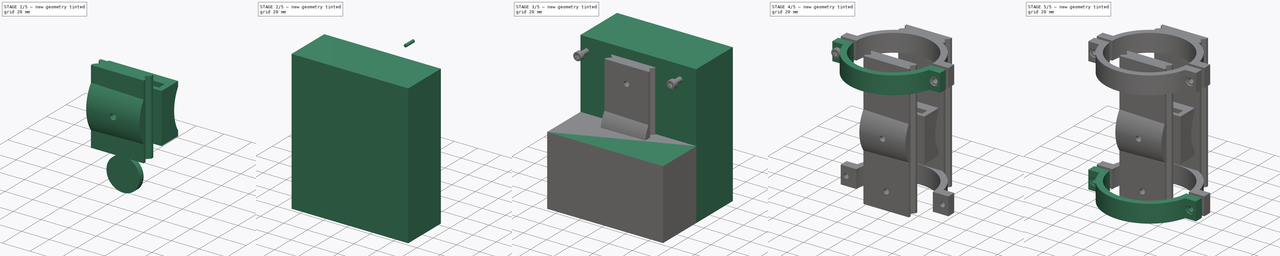
[diagram: build sequence overview — one tinted view per stage of 5, left to right]
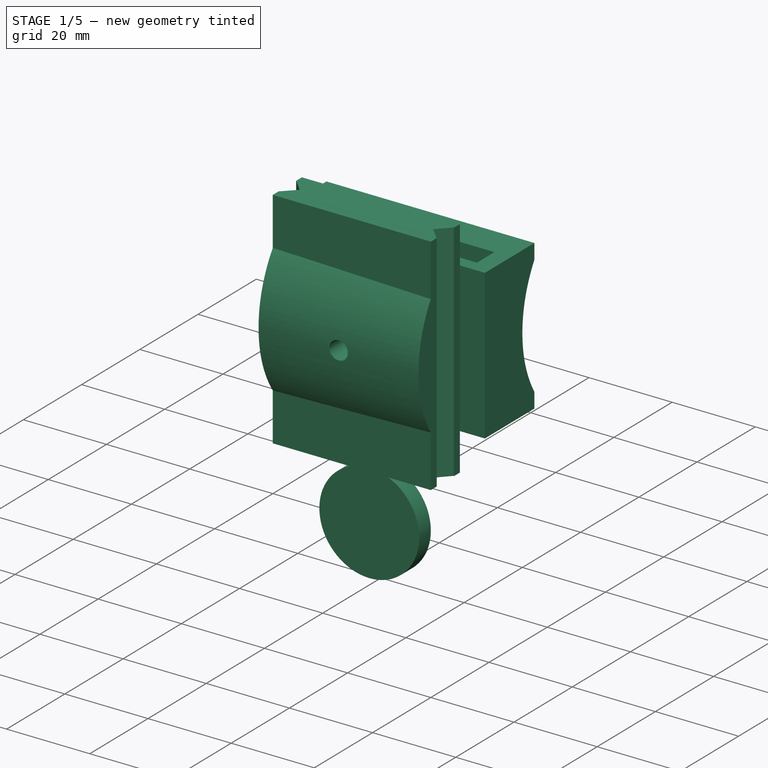
[diagram: stage 1 of 5 — iso view after this stage's code; geometry added in this stage tinted green]
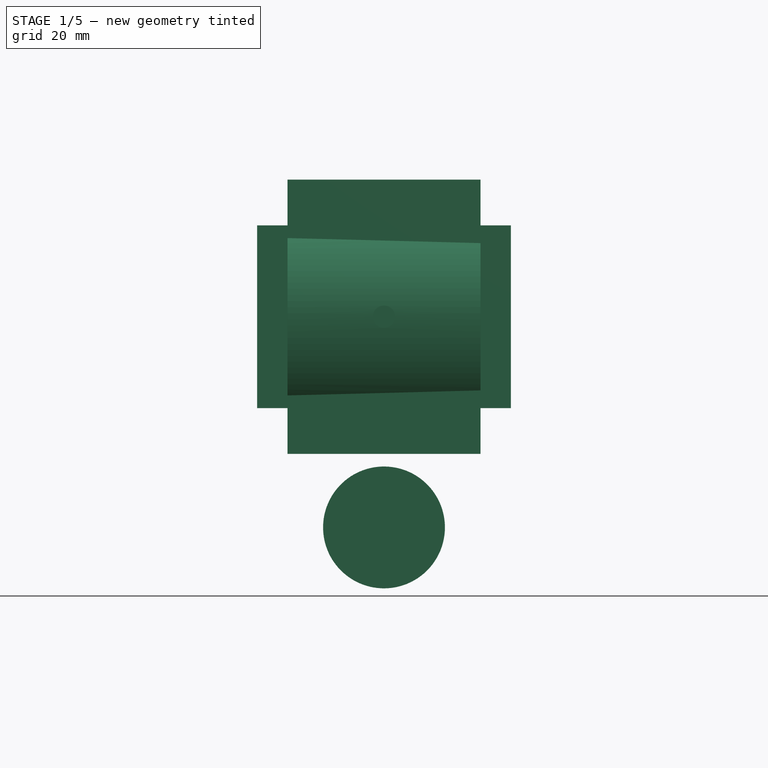
[diagram: stage 1 of 5 — front view after this stage's code; geometry added in this stage tinted green]
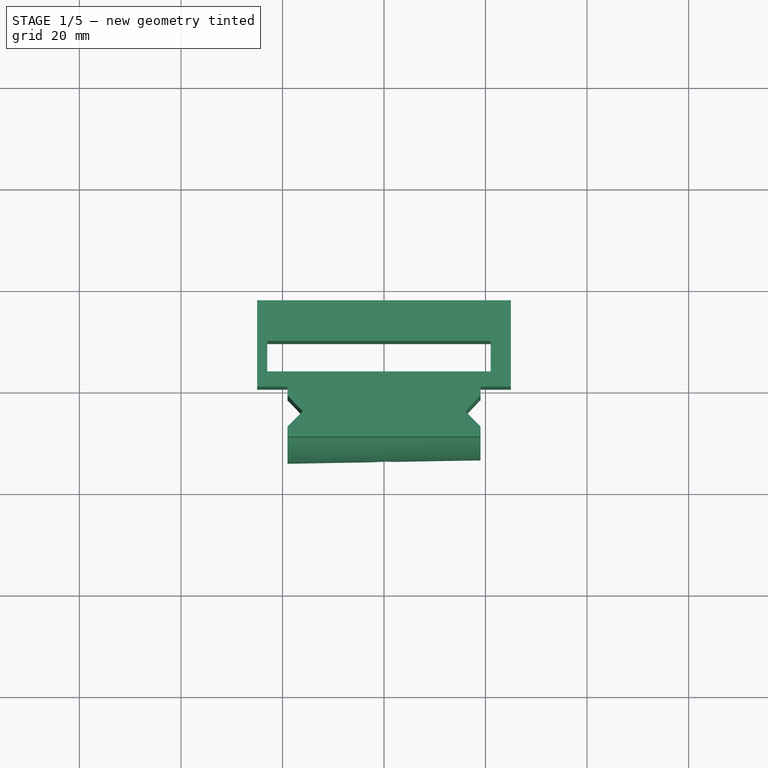
[diagram: stage 1 of 5 — top view after this stage's code; geometry added in this stage tinted green]
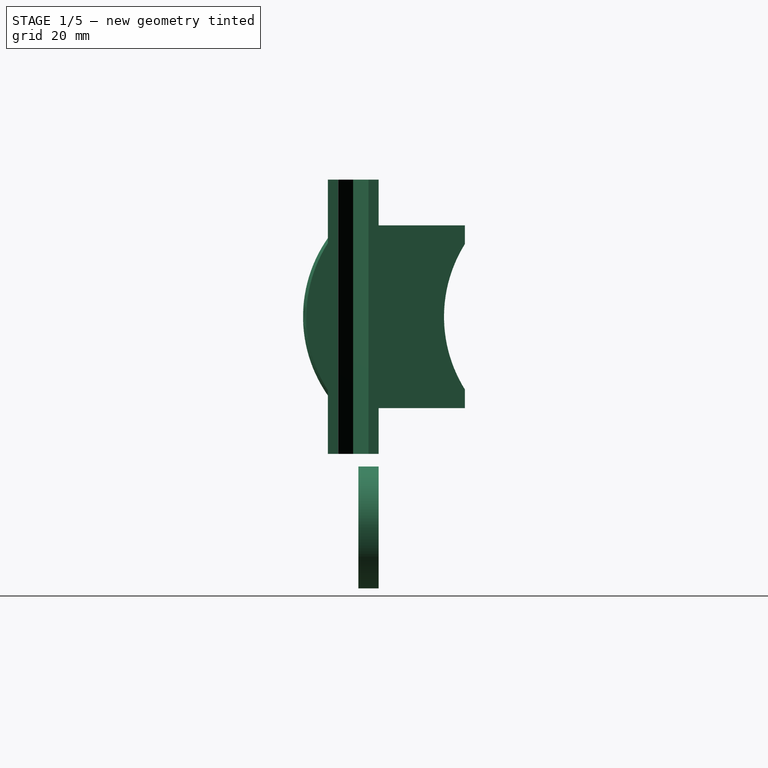
[diagram: stage 1 of 5 — right view after this stage's code; geometry added in this stage tinted green]
FCSTD DOCUMENT  (FreeCAD 0.17R13387 (Git))
Label: Telescope holder Swiss Arca
License: All rights reserved
LicenseURL: http://en.wikipedia.org/wiki/All_rights_reserved
objects: Part::MultiFuse×35, Part::Box×32, Part::FeaturePython×24, Part::Cut×20, Part::Cylinder×20, Sketcher::SketchObject×5, Part::Extrusion×5, App::Part×2, Part::Feature×1
note: 142 computed .brp shape members not serialized (recipe doc carries the construction recipe); baked Part::Feature solids carry a one-line shape summary decoded from their .brp

FEATURE [Part::Cylinder] Cylinder014005181  label="Válec167"
  Angle = 360
  AttacherType = Attacher::AttachEngine3D
  Height = 4
  Placement = pos=(0,0,-41.5) rot=(1,0,0;1.5708rad)
  Radius = 12
FEATURE [Part::Box] Box021022  label="Krychle032"
  AttacherType = Attacher::AttachEngine3D
  Height = 17
  Length = 50
  Placement = pos=(61,-42,-46) rot=(1,0,0;0rad)
  Width = 36
FEATURE [Part::Cylinder] Cylinder050  label="Válec015"
  Angle = 360
  AttacherType = Attacher::AttachEngine3D
  Height = 51
  Placement = pos=(60.5,-24,-68) rot=(0,1,0;1.58825rad)
  Radius = 27
FEATURE [Part::Box] Box021023  label="Krychle033"
  AttacherType = Attacher::AttachEngine3D
  Height = 6
  Length = 44
  Placement = pos=(63,-42,-38) rot=(1,0,0;0rad)
  Width = 36
FEATURE [Part::MultiFuse] Fusion005023
  Shapes = -> [Cylinder050,Box021023]
FEATURE [Part::Cut] Cut018020020009012
  Base = -> Box021022
  Placement = pos=(-86,-29,24) rot=(1,0,0;1.5708rad)
  Tool = -> Fusion005023
FEATURE [Sketcher::SketchObject] Sketch005
  MapMode = 5
  Placement = pos=(0,0,60) rot=(0,0,1;0rad)
  sketch-geometry (6):
    g0: LineSegment StartX=-18.9734 StartY=34.0308 StartZ=0 EndX=-16.0253 EndY=36.9748 EndZ=0
    g1: LineSegment StartX=18.996 StartY=34.0308 StartZ=0 EndX=16.044 EndY=36.9748 EndZ=0
    g2: LineSegment StartX=18.996 StartY=34.0308 StartZ=0 EndX=-18.9734 EndY=34.0308 EndZ=0
    g3: LineSegment StartX=-18.9734 StartY=40.0311 StartZ=0 EndX=-16.0253 EndY=36.9748 EndZ=0
    g4: LineSegment StartX=16.044 StartY=36.9748 StartZ=0 EndX=18.9109 EndY=40.0311 EndZ=0
    g5: LineSegment StartX=-18.9734 StartY=40.0311 StartZ=0 EndX=18.9109 EndY=40.0311 EndZ=0
  constraints (7):
    c: Coincident(g2,g1)
    c: Coincident(g2,g0)
    c: Horizontal(g2)
    c: Coincident(g3,g0)
    c: Coincident(g5,g3)
    c: Coincident(g5,g4)
    c: Horizontal(g5)
FEATURE [Part::Box] Box021024  label="Krychle034"
  AttacherType = Attacher::AttachEngine3D
  Height = 17
  Length = 50
  Placement = pos=(61,-42,-46) rot=(1,0,0;0rad)
  Width = 36
FEATURE [Part::Cylinder] Cylinder014005182  label="Válec168"
  Angle = 360
  AttacherType = Attacher::AttachEngine3D
  Height = 51
  Placement = pos=(60.5,-24,-68) rot=(0,1,0;1.58825rad)
  Radius = 27
FEATURE [Part::Box] Box021025  label="Krychle035"
  AttacherType = Attacher::AttachEngine3D
  Height = 112
  Length = 38
  Placement = pos=(-19,34,-52) rot=(0,0,1;0rad)
  Width = 6
FEATURE [Part::Box] Box021026  label="Krychle036"
  AttacherType = Attacher::AttachEngine3D
  Height = 6
  Length = 44
  Placement = pos=(63,-42,-38) rot=(1,0,0;0rad)
  Width = 36
FEATURE [Part::Box] Box021027  label="Krychle037"
  AttacherType = Attacher::AttachEngine3D
  Height = 112
  Length = 38
  Placement = pos=(-19,32,-52) rot=(0,0,1;0rad)
  Width = 10
FEATURE [Part::Extrusion] Extrude014
  Base = -> Sketch005
  Dir = (0,0,1)
  DirMode = 2
  FaceMakerClass = Part::FaceMakerBullseye
  LengthFwd = -112
  LengthRev = 0
  Solid = true
  Symmetric = false
FEATURE [Part::Cut] Cut018020020009015
  Base = -> Box021027
  Tool = -> Box021025
FEATURE [Part::MultiFuse] Fusion005024  label="Arca plate base005"
  Placement = pos=(0,-42,-4) rot=(0,0,-1;0rad)
  Shapes = -> [Extrude014,Cut018020020009015]
FEATURE [Part::MultiFuse] Fusion005026
  Shapes = -> [Cylinder014005182,Box021026]
FEATURE [Part::Cut] Cut018020020009014
  Base = -> Box021024
  Placement = pos=(-86,-29,24) rot=(1,0,0;1.5708rad)
  Tool = -> Fusion005026
FEATURE [Part::Feature] Cut018020020009013001  label="Desk003"
  Placement = pos=(0,-27,0) rot=(0,0,1;0rad)
  shape: bbox 50.17 x 27.87 x 112 mm, 43 faces, 2 solids (baked)
FEATURE [App::Part] Part001
  Group = -> [Box021024,Cylinder014005182,Box021026,Fusion005026,Cut018020020009014]
  License = CC BY 3.0
  LicenseURL = http://creativecommons.org/licenses/by/3.0/
  Origin = -> Origin001
FEATURE [Part::Box] Box021028  label="Krychle038"
  AttacherType = Attacher::AttachEngine3D
  Height = 36
  Length = 38
  Placement = pos=(-19,-17,-18) rot=(0,0,1;0rad)
  Width = 8
FEATURE [Part::MultiFuse] Fusion005027
  Shapes = -> [Fusion005024,Box021028]
FEATURE [Part::Cut] Cut018020020009013002
  Base = -> Fusion005027
  Tool = -> Cut018020020009013001
FEATURE [Part::Box] Box021029  label="Krychle039"
  AttacherType = Attacher::AttachEngine3D
  Height = 36
  Length = 38
  Placement = pos=(-19,-17,-63) rot=(0,0,1;0rad)
  Width = 17
FEATURE [Part::Box] Box021030  label="Krychle040"
  AttacherType = Attacher::AttachEngine3D
  Height = 36
  Length = 38
  Placement = pos=(-19,-17,27) rot=(0,0,1;0rad)
  Width = 17
FEATURE [Part::MultiFuse] Fusion005028
  Shapes = -> [Box021029,Box021030]
FEATURE [Part::Cut] Cut018020020009013003
  Base = -> Cut018020020009013002
  Tool = -> Fusion005028
FEATURE [Part::Cylinder] Cylinder014005183  label="Válec169"
  Angle = 360
  AttacherType = Attacher::AttachEngine3D
  Height = 30
  Placement = pos=(0,5,0) rot=(1,0,0;1.5708rad)
  Radius = 2.2
FEATURE [Part::Cylinder] Cylinder014005184  label="Válec170"
  Angle = 360
  AttacherType = Attacher::AttachEngine3D
  Height = 4
  Placement = pos=(0,0,0) rot=(1,0,0;1.5708rad)
  Radius = 12
FEATURE [Part::MultiFuse] Fusion005029
  Shapes = -> [Cylinder014005183,Cylinder014005184]
FEATURE [Part::Cut] Cut018020020009013004  label="U 2"
  Base = -> Cut018020020009013003
  Tool = -> Fusion005029
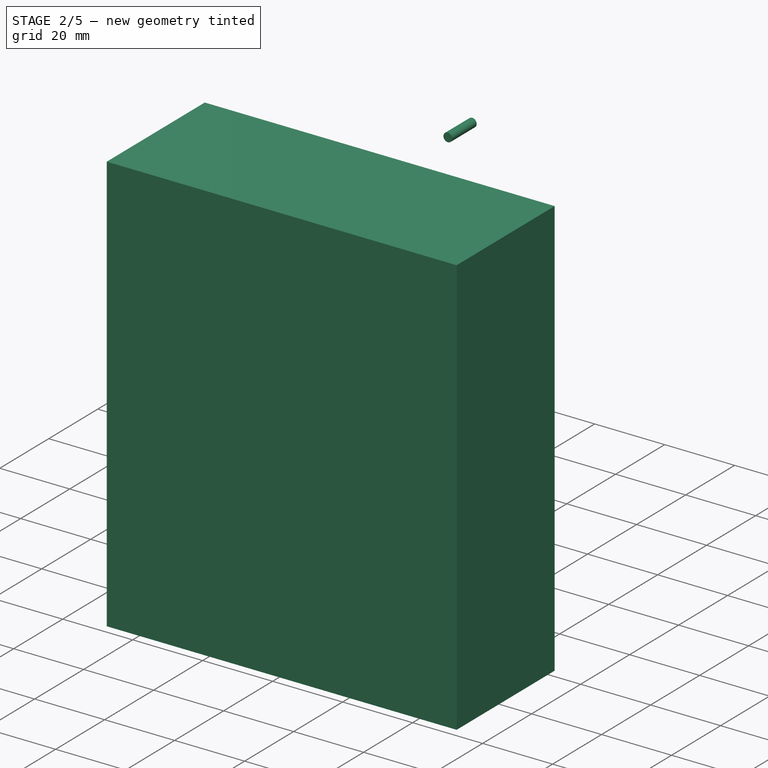
[diagram: stage 2 of 5 — iso view after this stage's code; geometry added in this stage tinted green]
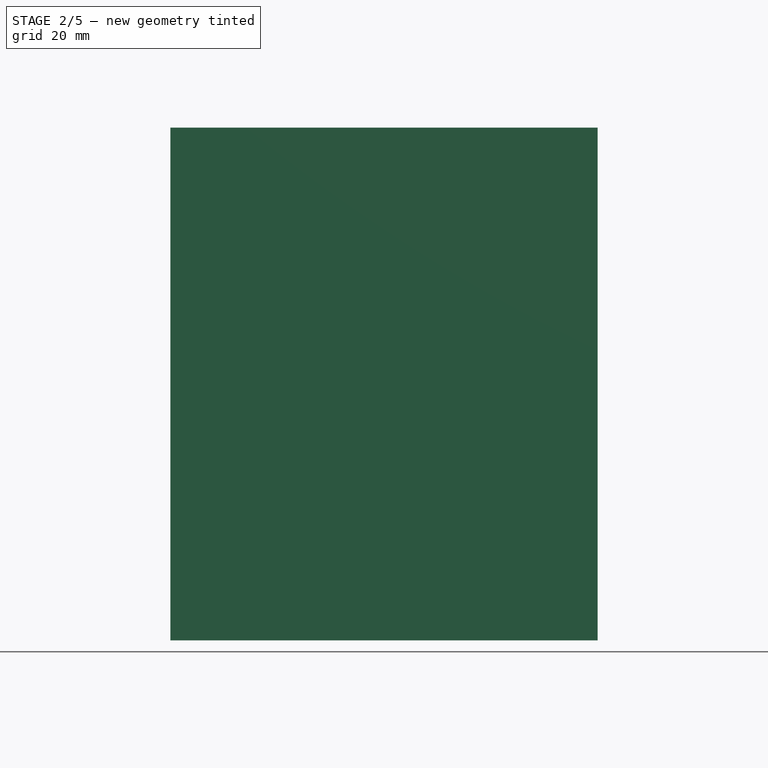
[diagram: stage 2 of 5 — front view after this stage's code; geometry added in this stage tinted green]
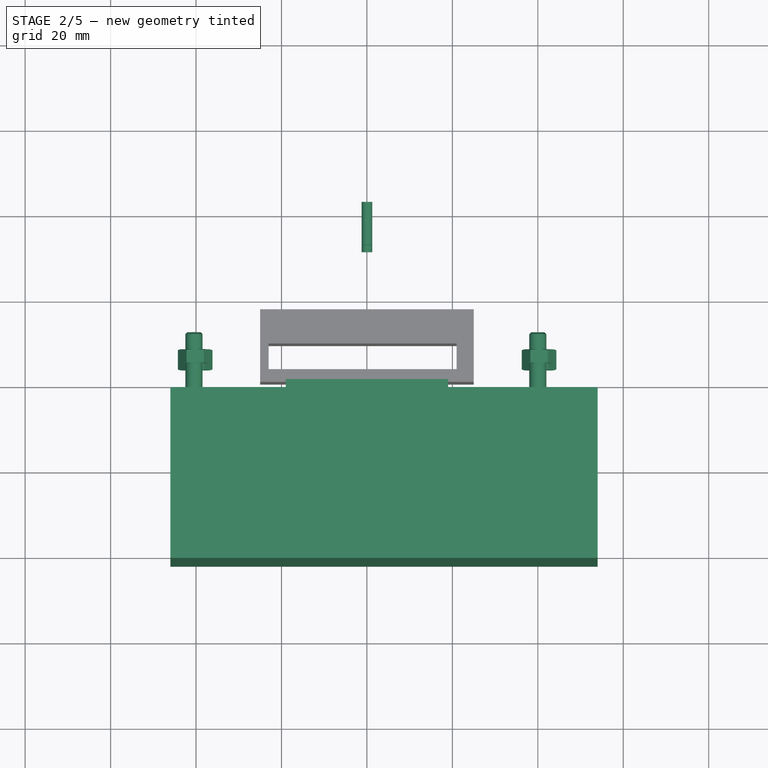
[diagram: stage 2 of 5 — top view after this stage's code; geometry added in this stage tinted green]
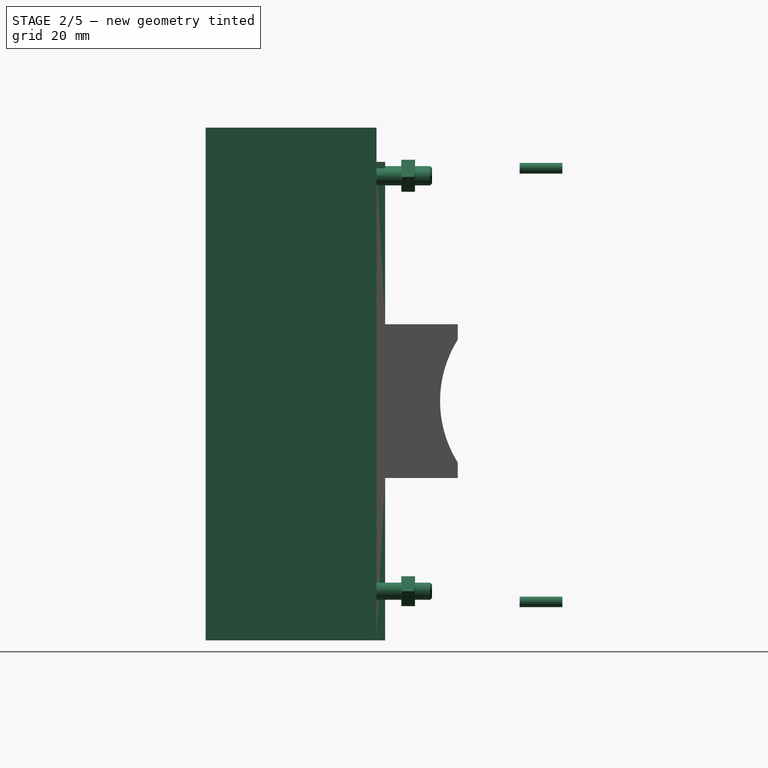
[diagram: stage 2 of 5 — right view after this stage's code; geometry added in this stage tinted green]
FEATURE [Part::FeaturePython] Nut004  label="M4-Nut004"  # Fasteners workbench fastener (typed FeaturePython)
  Placement = pos=(-40.2,7,53) rot=(1,0,0;1.5708rad)
  diameter = 6
  invert = false
  matchOuter = false
  offset = 0
  thread = false
  type = 1
FEATURE [Part::FeaturePython] Screw004  label="M4x20-Screw004"  # Fasteners workbench fastener (typed FeaturePython)
  Placement = pos=(-40.5,-9,53) rot=(1,0,0;1.5708rad)
  diameter = 4
  invert = false
  length = 5
  matchOuter = false
  offset = 0
  thread = false
  type = 5
FEATURE [Part::FeaturePython] Nut005  label="M4-Nut005"  # Fasteners workbench fastener (typed FeaturePython)
  Placement = pos=(-40.2,7,53) rot=(1,0,0;1.5708rad)
  diameter = 6
  invert = false
  matchOuter = false
  offset = 0
  thread = false
  type = 1
FEATURE [Part::FeaturePython] Screw005  label="M4x20-Screw005"  # Fasteners workbench fastener (typed FeaturePython)
  Placement = pos=(-40.5,-9,53) rot=(1,0,0;1.5708rad)
  diameter = 4
  invert = false
  length = 5
  matchOuter = false
  offset = 0
  thread = false
  type = 5
FEATURE [Part::FeaturePython] Screw006  label="M4x20-Screw006"  # Fasteners workbench fastener (typed FeaturePython)
  Placement = pos=(-40.5,-9,53) rot=(1,0,0;1.5708rad)
  diameter = 4
  invert = false
  length = 5
  matchOuter = false
  offset = 0
  thread = false
  type = 5
FEATURE [Part::FeaturePython] Nut006  label="M4-Nut006"  # Fasteners workbench fastener (typed FeaturePython)
  Placement = pos=(-40.2,7,53) rot=(1,0,0;1.5708rad)
  diameter = 6
  invert = false
  matchOuter = false
  offset = 0
  thread = false
  type = 1
FEATURE [Part::FeaturePython] Nut007  label="M4-Nut007"  # Fasteners workbench fastener (typed FeaturePython)
  Placement = pos=(-40.2,7,53) rot=(1,0,0;1.5708rad)
  diameter = 6
  invert = false
  matchOuter = false
  offset = 0
  thread = false
  type = 1
FEATURE [Part::FeaturePython] Screw007  label="M4x20-Screw007"  # Fasteners workbench fastener (typed FeaturePython)
  Placement = pos=(-40.5,-9,53) rot=(1,0,0;1.5708rad)
  diameter = 4
  invert = false
  length = 5
  matchOuter = false
  offset = 0
  thread = false
  type = 5
FEATURE [Part::MultiFuse] Fusion107  label="Srouby005"
  Placement = pos=(0,0,-97.5) rot=(0,0,1;0rad)
  Shapes = -> [Screw004,Nut007]
FEATURE [Part::MultiFuse] Fusion108  label="Srouby006"
  Placement = pos=(80.5,0,-97.5) rot=(0,0,1;0rad)
  Shapes = -> [Screw006,Nut006]
FEATURE [Part::MultiFuse] Fusion109  label="Srouby007"
  Placement = pos=(80.5,0,-0.5) rot=(0,0,1;0rad)
  Shapes = -> [Screw005,Nut005]
FEATURE [Part::Box] Box025  label="Krychle018"
  AttacherType = Attacher::AttachEngine3D
  Height = 120
  Length = 100
  Placement = pos=(-46,-42,-56) rot=(0,0,1;0rad)
  Width = 40
FEATURE [Part::Cylinder] Cylinder014005175  label="Válec162"
  Angle = 360
  AttacherType = Attacher::AttachEngine3D
  Height = 10
  Placement = pos=(0,43,54.5) rot=(1,0,0;1.5708rad)
  Radius = 1.25
FEATURE [Part::Cylinder] Cylinder014005176  label="Válec163"
  Angle = 360
  AttacherType = Attacher::AttachEngine3D
  Height = 10
  Placement = pos=(0,43,-47) rot=(1,0,0;1.5708rad)
  Radius = 1.24
FEATURE [Part::MultiFuse] Fusion120  label="zarazky001"
  Placement = pos=(0,-1.5,0) rot=(0,0,1;0rad)
  Shapes = -> [Cylinder014005175,Cylinder014005176]
FEATURE [App::Part] Part
  Group = -> [Extrude010,Cylinder014005175,Cylinder014005176,Cylinder014005169,Box019,Box020,Box022,Box021,Cylinder014005170,Box025,Cylinder014005171,Box023,Box024,Sketch001,Cut061012,Cut061011,Cut061014,Cut061013,Fusion120,Fusion110,Fusion109,Fusion106,Fusion108,Fusion104,Fusion103,Fusion105,Fusion107,Nut007,Screw007,Nut006,Nut004,Nut005,Screw005,Screw006,Screw004,Cut061019,Extrude011,Sketch002,Box033,Box026,+60 more]
  License = CC BY 3.0
  LicenseURL = http://creativecommons.org/licenses/by/3.0/
  Origin = -> Origin
FEATURE [Sketcher::SketchObject] Sketch004
  MapMode = 5
  Placement = pos=(0,0,60) rot=(0,0,1;0rad)
  sketch-geometry (6):
    g0: LineSegment StartX=-18.9734 StartY=34.0308 StartZ=0 EndX=-16.0253 EndY=36.9748 EndZ=0
    g1: LineSegment StartX=18.996 StartY=34.0308 StartZ=0 EndX=16.044 EndY=36.9748 EndZ=0
    g2: LineSegment StartX=18.996 StartY=34.0308 StartZ=0 EndX=-18.9734 EndY=34.0308 EndZ=0
    g3: LineSegment StartX=-18.9734 StartY=40.0311 StartZ=0 EndX=-16.0253 EndY=36.9748 EndZ=0
    g4: LineSegment StartX=16.044 StartY=36.9748 StartZ=0 EndX=18.9109 EndY=40.0311 EndZ=0
    g5: LineSegment StartX=-18.9734 StartY=40.0311 StartZ=0 EndX=18.9109 EndY=40.0311 EndZ=0
  constraints (7):
    c: Coincident(g2,g1)
    c: Coincident(g2,g0)
    c: Horizontal(g2)
    c: Coincident(g3,g0)
    c: Coincident(g5,g3)
    c: Coincident(g5,g4)
    c: Horizontal(g5)
FEATURE [Part::Extrusion] Extrude013
  Base = -> Sketch004
  Dir = (0,0,1)
  DirMode = 2
  FaceMakerClass = Part::FaceMakerBullseye
  LengthFwd = -112
  LengthRev = 0
  Solid = true
  Symmetric = false
FEATURE [Part::Box] Box041  label="Krychle030"
  AttacherType = Attacher::AttachEngine3D
  Height = 112
  Length = 38
  Placement = pos=(-19,34,-52) rot=(0,0,1;0rad)
  Width = 6
FEATURE [Part::Box] Box042  label="Krychle031"
  AttacherType = Attacher::AttachEngine3D
  Height = 112
  Length = 38
  Placement = pos=(-19,32,-52) rot=(0,0,1;0rad)
  Width = 10
FEATURE [Part::Cut] Cut061025
  Base = -> Box042
  Tool = -> Box041
FEATURE [Part::MultiFuse] Fusion130  label="Arca plate base004"
  Placement = pos=(0,-42,-4) rot=(0,0,-1;0rad)
  Shapes = -> [Extrude013,Cut061025]
FEATURE [Part::Cylinder] Cylinder014005177  label="Válec"
  Angle = 360
  AttacherType = Attacher::AttachEngine3D
  Height = 30
  Placement = pos=(0,20,0) rot=(1,0,0;1.5708rad)
  Radius = 2.2
FEATURE [Part::Cylinder] Cylinder014005178  label="Válec164"
  Angle = 360
  AttacherType = Attacher::AttachEngine3D
  Height = 10
  Placement = pos=(0,0,41.5) rot=(1,0,0;1.5708rad)
  Radius = 2.2
FEATURE [Part::Cylinder] Cylinder014005179  label="Válec165"
  Angle = 360
  AttacherType = Attacher::AttachEngine3D
  Height = 10
  Placement = pos=(0,0,-41.5) rot=(1,0,0;1.5708rad)
  Radius = 2.2
FEATURE [Part::Cylinder] Cylinder014005180  label="Válec166"
  Angle = 360
  AttacherType = Attacher::AttachEngine3D
  Height = 4
  Placement = pos=(0,0,41.5) rot=(1,0,0;1.5708rad)
  Radius = 12
FEATURE [Part::MultiFuse] Fusion131
  Shapes = -> [Cylinder014005177,Cylinder014005179,Cylinder014005180,Cylinder014005181,Cylinder014005178]
FEATURE [Part::MultiFuse] Fusion
  Shapes = -> [Fusion130,Cut018020020009012]
FEATURE [Part::Cut] Cut018020020009013  label="Desk2"
  Base = -> Fusion
  Tool = -> Fusion131
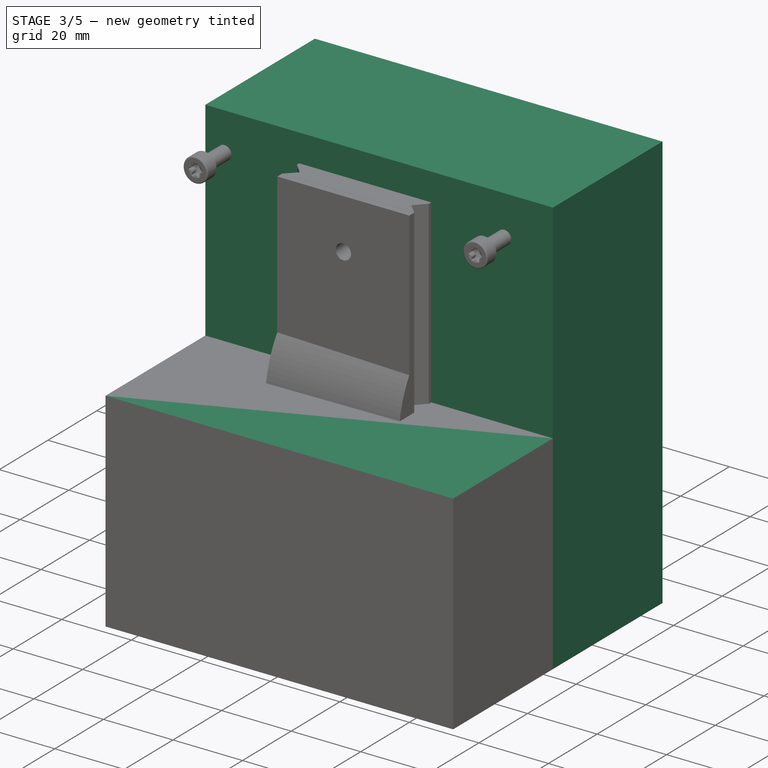
[diagram: stage 3 of 5 — iso view after this stage's code; geometry added in this stage tinted green]
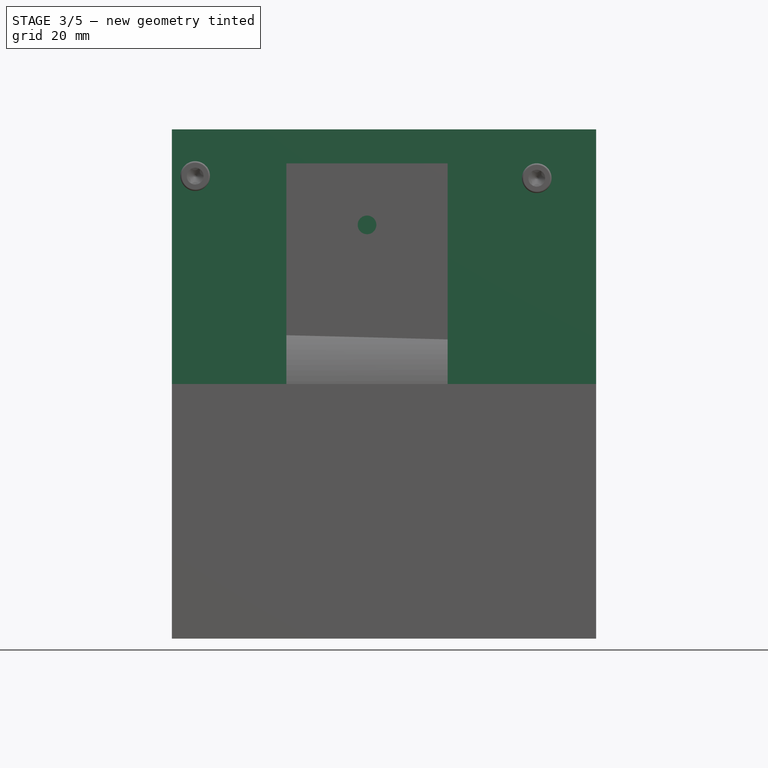
[diagram: stage 3 of 5 — front view after this stage's code; geometry added in this stage tinted green]
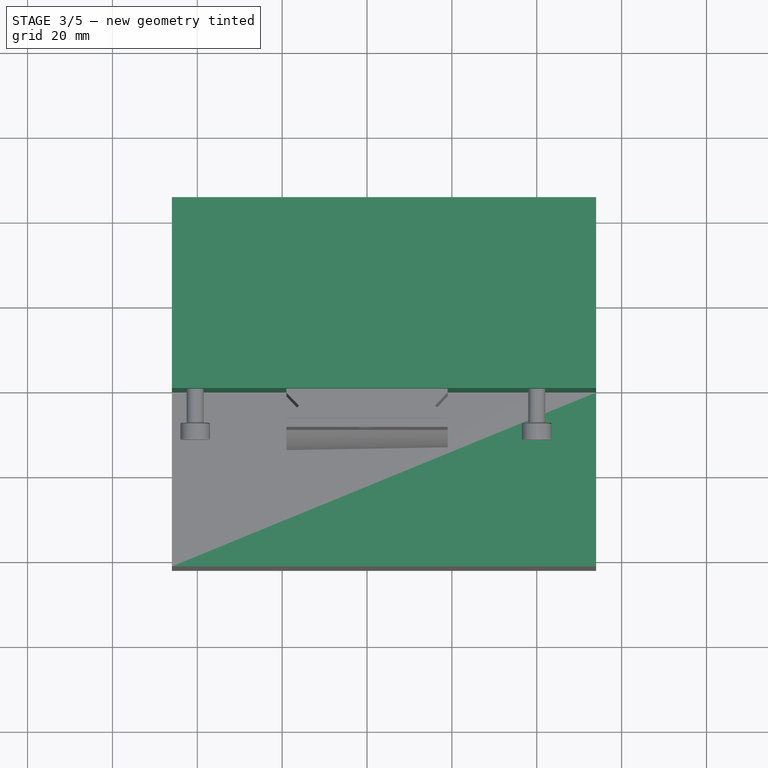
[diagram: stage 3 of 5 — top view after this stage's code; geometry added in this stage tinted green]
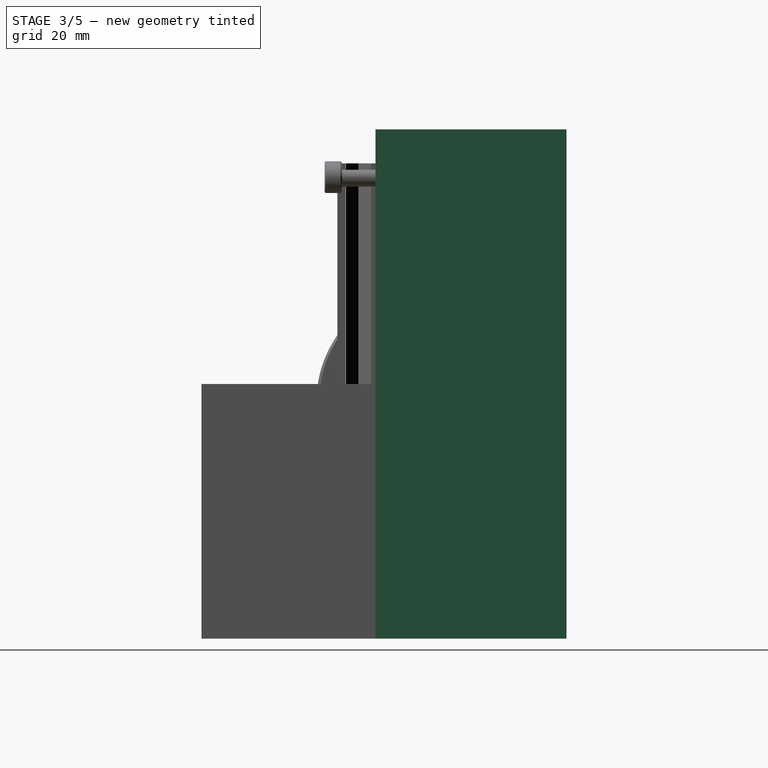
[diagram: stage 3 of 5 — right view after this stage's code; geometry added in this stage tinted green]
FEATURE [Part::Cylinder] Cylinder014005169  label="tubus003"
  Angle = 360
  AttacherType = Attacher::AttachEngine3D
  Height = 15
  Placement = pos=(0,-1,-52) rot=(0,0,1;0rad)
  Radius = 37
FEATURE [Part::Box] Box019  label="Krychle014"
  AttacherType = Attacher::AttachEngine3D
  Height = 15
  Length = 90
  Placement = pos=(-45,-10,-52) rot=(0,0,1;0rad)
  Width = 17
FEATURE [Part::Box] Box020  label="mezara002"
  AttacherType = Attacher::AttachEngine3D
  Height = 15
  Length = 90
  Placement = pos=(-45,-3,-52) rot=(0,0,1;0rad)
  Width = 3
FEATURE [Part::Box] Box021  label="Krychle015"
  AttacherType = Attacher::AttachEngine3D
  Height = 15
  Length = 90
  Placement = pos=(-45,-10,45) rot=(0,0,1;0rad)
  Width = 17
FEATURE [Part::Box] Box022  label="Krychle016"
  AttacherType = Attacher::AttachEngine3D
  Height = 112
  Length = 38
  Placement = pos=(-19,34,-52) rot=(0,0,1;0rad)
  Width = 6
FEATURE [Part::Box] Box023  label="mezara003"
  AttacherType = Attacher::AttachEngine3D
  Height = 15
  Length = 90
  Placement = pos=(-45,-3,45) rot=(0,0,1;0rad)
  Width = 3
FEATURE [Part::Box] Box024  label="Krychle017"
  AttacherType = Attacher::AttachEngine3D
  Height = 112
  Length = 38
  Placement = pos=(-19,32,-52) rot=(0,0,1;0rad)
  Width = 10
FEATURE [Part::Cylinder] Cylinder014005170  label="tubus004"
  Angle = 360
  AttacherType = Attacher::AttachEngine3D
  Height = 112
  Placement = pos=(0,-1,-52) rot=(0,0,1;0rad)
  Radius = 32
FEATURE [Part::Cylinder] Cylinder014005171  label="tubus005"
  Angle = 360
  AttacherType = Attacher::AttachEngine3D
  Height = 15
  Placement = pos=(0,-1,45) rot=(0,0,1;0rad)
  Radius = 37
FEATURE [Sketcher::SketchObject] Sketch001
  MapMode = 5
  Placement = pos=(0,0,60) rot=(0,0,1;0rad)
  sketch-geometry (6):
    g0: LineSegment StartX=-18.9734 StartY=34.0308 StartZ=0 EndX=-16.0253 EndY=36.9748 EndZ=0
    g1: LineSegment StartX=18.996 StartY=34.0308 StartZ=0 EndX=16.044 EndY=36.9748 EndZ=0
    g2: LineSegment StartX=18.996 StartY=34.0308 StartZ=0 EndX=-18.9734 EndY=34.0308 EndZ=0
    g3: LineSegment StartX=-18.9734 StartY=40.0311 StartZ=0 EndX=-16.0253 EndY=36.9748 EndZ=0
    g4: LineSegment StartX=16.044 StartY=36.9748 StartZ=0 EndX=18.9109 EndY=40.0311 EndZ=0
    g5: LineSegment StartX=-18.9734 StartY=40.0311 StartZ=0 EndX=18.9109 EndY=40.0311 EndZ=0
  constraints (7):
    c: Coincident(g2,g1)
    c: Coincident(g2,g0)
    c: Horizontal(g2)
    c: Coincident(g3,g0)
    c: Coincident(g5,g3)
    c: Coincident(g5,g4)
    c: Horizontal(g5)
FEATURE [Part::Extrusion] Extrude010
  Base = -> Sketch001
  Dir = (0,0,1)
  DirMode = 2
  FaceMakerClass = Part::FaceMakerBullseye
  LengthFwd = -112
  LengthRev = 0
  Solid = true
  Symmetric = false
FEATURE [Part::Cut] Cut061011
  Base = -> Box024
  Tool = -> Box022
FEATURE [Part::MultiFuse] Fusion103  label="Arca plate base001"
  Placement = pos=(0,-0.5,0) rot=(0,0,1;0rad)
  Shapes = -> [Extrude010,Cut061011]
FEATURE [Part::MultiFuse] Fusion104
  Shapes = -> [Box023,Box020,Cylinder014005170]
FEATURE [Part::MultiFuse] Fusion105
  Shapes = -> [Fusion103,Cylinder014005169,Cylinder014005171,Box021,Box019]
FEATURE [Part::Cut] Cut061012
  Base = -> Fusion105
  Tool = -> Fusion104
FEATURE [Part::MultiFuse] Fusion106  label="Srouby004"
  Placement = pos=(0,0,-0.5) rot=(0,0,1;0rad)
  Shapes = -> [Screw007,Nut004]
FEATURE [Part::MultiFuse] Fusion110
  Shapes = -> [Fusion106,Fusion109,Fusion107,Fusion108]
FEATURE [Part::Cut] Cut061013  label="Drzak 002"
  Base = -> Cut061012
  Tool = -> Fusion110
FEATURE [Part::Cut] Cut061014  label="Drazak spodek"
  Base = -> Cut061013
  Tool = -> Box025
FEATURE [Part::Box] Box026  label="Krychle019"
  AttacherType = Attacher::AttachEngine3D
  Height = 120
  Length = 100
  Placement = pos=(-46,-1,-56) rot=(0,0,1;0rad)
  Width = 45
FEATURE [Part::FeaturePython] Nut009  label="M4-Nut009"  # Fasteners workbench fastener (typed FeaturePython)
  Placement = pos=(-40.2,7,53) rot=(1,0,0;1.5708rad)
  diameter = 6
  invert = false
  matchOuter = false
  offset = 0
  thread = false
  type = 1
FEATURE [Part::FeaturePython] Screw009  label="M4x20-Screw009"  # Fasteners workbench fastener (typed FeaturePython)
  Placement = pos=(-40.5,-9,53) rot=(1,0,0;1.5708rad)
  diameter = 4
  invert = false
  length = 5
  matchOuter = false
  offset = 0
  thread = false
  type = 5
FEATURE [Part::FeaturePython] Screw010  label="M4x20-Screw010"  # Fasteners workbench fastener (typed FeaturePython)
  Placement = pos=(-40.5,-9,53) rot=(1,0,0;1.5708rad)
  diameter = 4
  invert = false
  length = 5
  matchOuter = false
  offset = 0
  thread = false
  type = 5
FEATURE [Part::FeaturePython] Nut010  label="M4-Nut010"  # Fasteners workbench fastener (typed FeaturePython)
  Placement = pos=(-40.2,7,53) rot=(1,0,0;1.5708rad)
  diameter = 6
  invert = false
  matchOuter = false
  offset = 0
  thread = false
  type = 1
FEATURE [Part::MultiFuse] Fusion117  label="Srouby011"
  Placement = pos=(80.5,0,-0.5) rot=(0,0,1;0rad)
  Shapes = -> [Screw009,Nut009]
FEATURE [Part::Box] Box033  label="Krychle024"
  AttacherType = Attacher::AttachEngine3D
  Height = 60
  Length = 100
  Placement = pos=(-46,-42,-56) rot=(0,0,1;0rad)
  Width = 43
FEATURE [Part::MultiFuse] Fusion119
  Shapes = -> [Box033,Box026]
FEATURE [Part::Cut] Cut061019  label="telecosp bottom"
  Base = -> Cut061014
  Tool = -> Fusion120
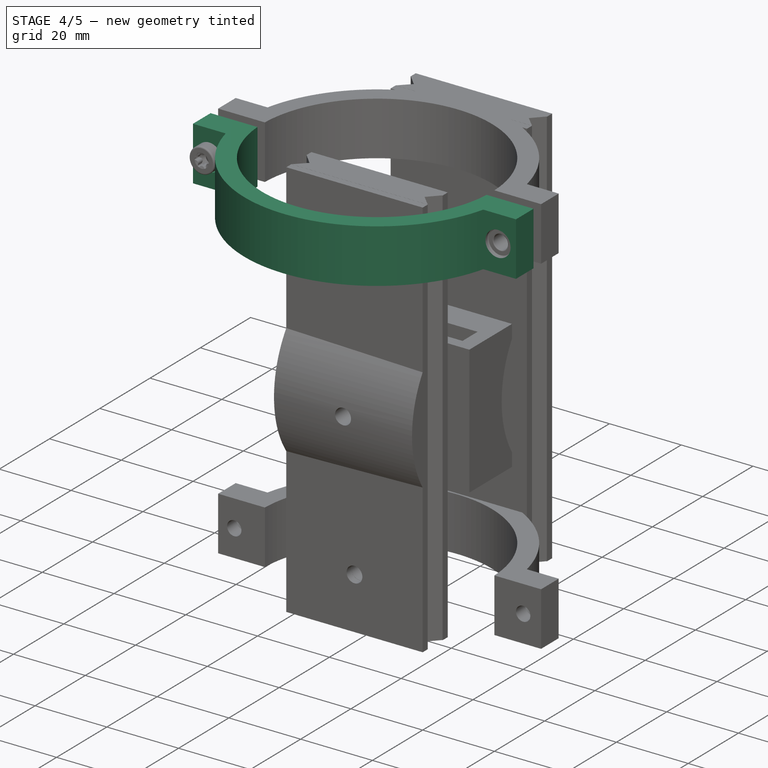
[diagram: stage 4 of 5 — iso view after this stage's code; geometry added in this stage tinted green]
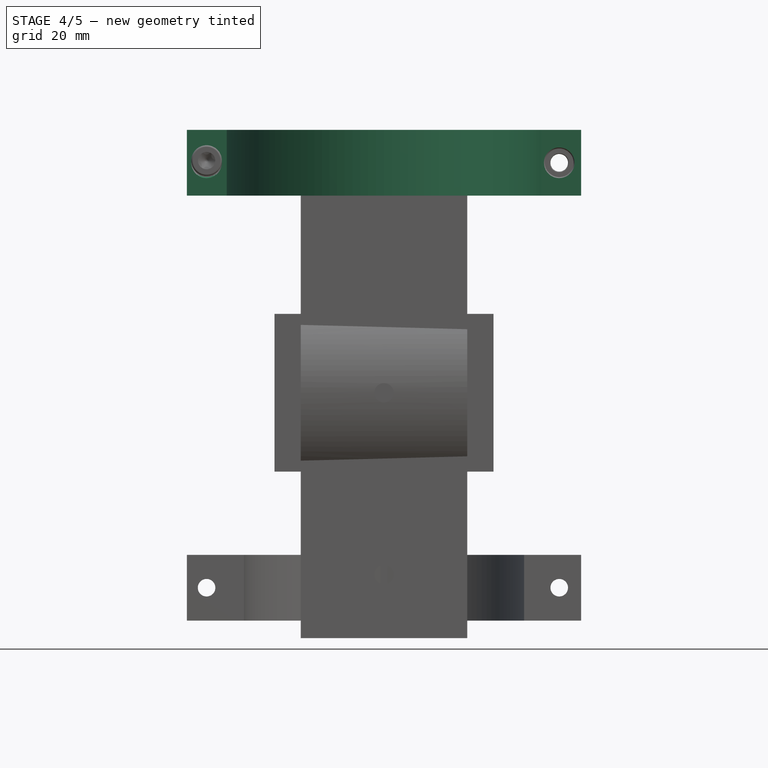
[diagram: stage 4 of 5 — front view after this stage's code; geometry added in this stage tinted green]
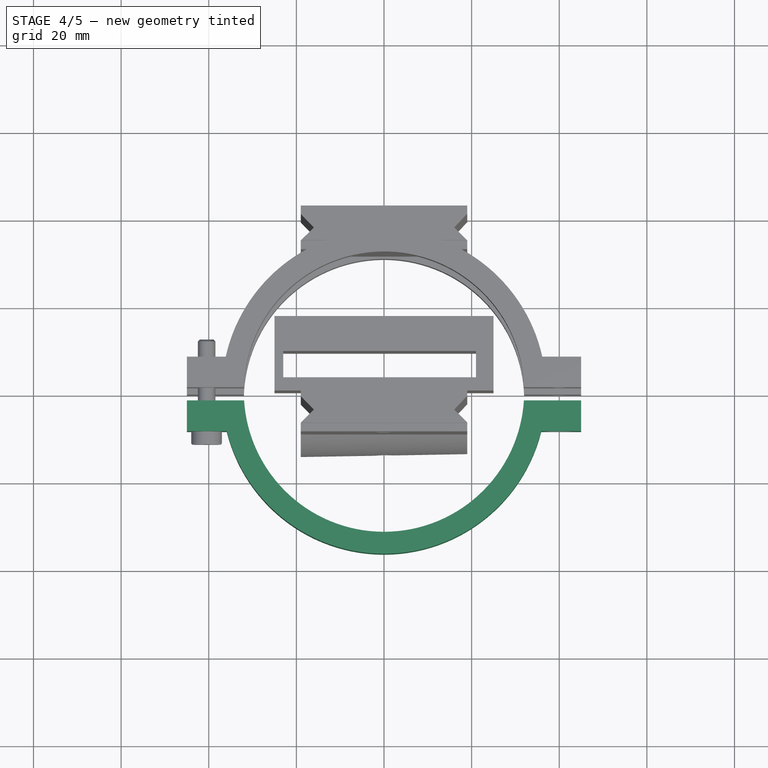
[diagram: stage 4 of 5 — top view after this stage's code; geometry added in this stage tinted green]
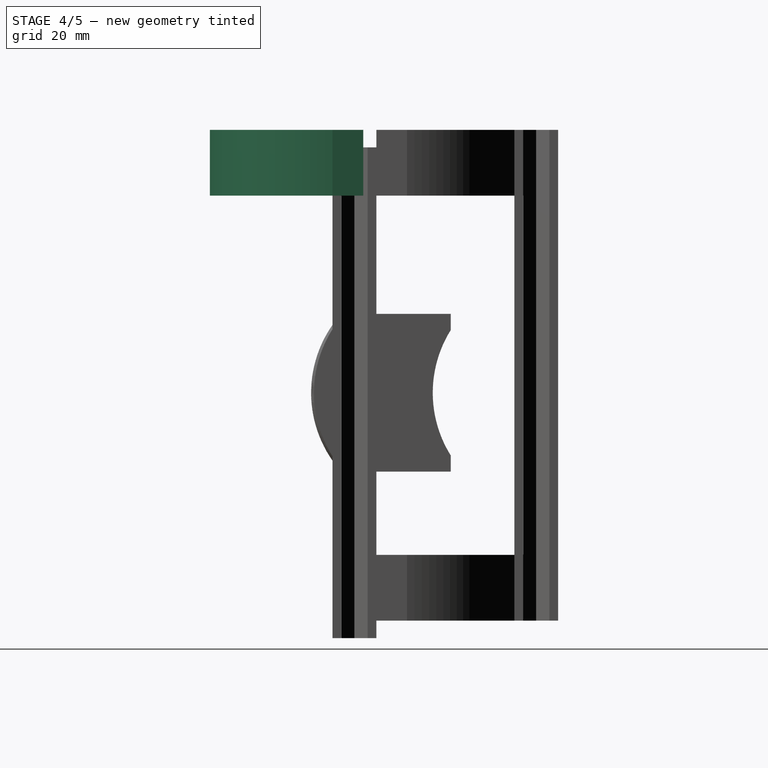
[diagram: stage 4 of 5 — right view after this stage's code; geometry added in this stage tinted green]
FEATURE [Part::FeaturePython] Nut003  label="M4-Nut003"  # Fasteners workbench fastener (typed FeaturePython)
  Placement = pos=(-40.2,7,53) rot=(1,0,0;1.5708rad)
  diameter = 6
  invert = false
  matchOuter = false
  offset = 0
  thread = false
  type = 1
FEATURE [Part::FeaturePython] Screw003  label="M4x20-Screw003"  # Fasteners workbench fastener (typed FeaturePython)
  Placement = pos=(-40.5,-9,53) rot=(1,0,0;1.5708rad)
  diameter = 4
  invert = false
  length = 5
  matchOuter = false
  offset = 0
  thread = false
  type = 5
FEATURE [Part::FeaturePython] Nut008  label="M4-Nut008"  # Fasteners workbench fastener (typed FeaturePython)
  Placement = pos=(-40.2,7,53) rot=(1,0,0;1.5708rad)
  diameter = 6
  invert = false
  matchOuter = false
  offset = 0
  thread = false
  type = 1
FEATURE [Part::FeaturePython] Screw008  label="M4x20-Screw008"  # Fasteners workbench fastener (typed FeaturePython)
  Placement = pos=(-40.5,-9,53) rot=(1,0,0;1.5708rad)
  diameter = 4
  invert = false
  length = 5
  matchOuter = false
  offset = 0
  thread = false
  type = 5
FEATURE [Part::Cylinder] Cylinder014005172  label="tubus006"
  Angle = 360
  AttacherType = Attacher::AttachEngine3D
  Height = 15
  Placement = pos=(0,-1,-52) rot=(0,0,1;0rad)
  Radius = 37
FEATURE [Part::FeaturePython] Nut011  label="M4-Nut011"  # Fasteners workbench fastener (typed FeaturePython)
  Placement = pos=(-40.2,7,53) rot=(1,0,0;1.5708rad)
  diameter = 6
  invert = false
  matchOuter = false
  offset = 0
  thread = false
  type = 1
FEATURE [Part::FeaturePython] Screw011  label="M4x20-Screw011"  # Fasteners workbench fastener (typed FeaturePython)
  Placement = pos=(-40.5,-9,53) rot=(1,0,0;1.5708rad)
  diameter = 4
  invert = false
  length = 5
  matchOuter = false
  offset = 0
  thread = false
  type = 5
FEATURE [Part::Box] Box027  label="Krychle020"
  AttacherType = Attacher::AttachEngine3D
  Height = 15
  Length = 90
  Placement = pos=(-45,-10,-52) rot=(0,0,1;0rad)
  Width = 17
FEATURE [Part::Box] Box028  label="mezara004"
  AttacherType = Attacher::AttachEngine3D
  Height = 15
  Length = 90
  Placement = pos=(-45,-3,-52) rot=(0,0,1;0rad)
  Width = 3
FEATURE [Part::Box] Box029  label="Krychle021"
  AttacherType = Attacher::AttachEngine3D
  Height = 15
  Length = 90
  Placement = pos=(-45,-10,45) rot=(0,0,1;0rad)
  Width = 17
FEATURE [Part::Box] Box030  label="Krychle022"
  AttacherType = Attacher::AttachEngine3D
  Height = 112
  Length = 38
  Placement = pos=(-19,34,-52) rot=(0,0,1;0rad)
  Width = 6
FEATURE [Part::Box] Box031  label="mezara005"
  AttacherType = Attacher::AttachEngine3D
  Height = 15
  Length = 90
  Placement = pos=(-45,-3,45) rot=(0,0,1;0rad)
  Width = 3
FEATURE [Part::Box] Box032  label="Krychle023"
  AttacherType = Attacher::AttachEngine3D
  Height = 112
  Length = 38
  Placement = pos=(-19,32,-52) rot=(0,0,1;0rad)
  Width = 10
FEATURE [Part::Cylinder] Cylinder014005173  label="tubus007"
  Angle = 360
  AttacherType = Attacher::AttachEngine3D
  Height = 112
  Placement = pos=(0,-1,-52) rot=(0,0,1;0rad)
  Radius = 32
FEATURE [Part::Cylinder] Cylinder014005174  label="tubus008"
  Angle = 360
  AttacherType = Attacher::AttachEngine3D
  Height = 15
  Placement = pos=(0,-1,45) rot=(0,0,1;0rad)
  Radius = 37
FEATURE [Sketcher::SketchObject] Sketch002
  MapMode = 5
  Placement = pos=(0,0,60) rot=(0,0,1;0rad)
  sketch-geometry (6):
    g0: LineSegment StartX=-18.9734 StartY=34.0308 StartZ=0 EndX=-16.0253 EndY=36.9748 EndZ=0
    g1: LineSegment StartX=18.996 StartY=34.0308 StartZ=0 EndX=16.044 EndY=36.9748 EndZ=0
    g2: LineSegment StartX=18.996 StartY=34.0308 StartZ=0 EndX=-18.9734 EndY=34.0308 EndZ=0
    g3: LineSegment StartX=-18.9734 StartY=40.0311 StartZ=0 EndX=-16.0253 EndY=36.9748 EndZ=0
    g4: LineSegment StartX=16.044 StartY=36.9748 StartZ=0 EndX=18.9109 EndY=40.0311 EndZ=0
    g5: LineSegment StartX=-18.9734 StartY=40.0311 StartZ=0 EndX=18.9109 EndY=40.0311 EndZ=0
  constraints (7):
    c: Coincident(g2,g1)
    c: Coincident(g2,g0)
    c: Horizontal(g2)
    c: Coincident(g3,g0)
    c: Coincident(g5,g3)
    c: Coincident(g5,g4)
    c: Horizontal(g5)
FEATURE [Part::Extrusion] Extrude011
  Base = -> Sketch002
  Dir = (0,0,1)
  DirMode = 2
  FaceMakerClass = Part::FaceMakerBullseye
  LengthFwd = -112
  LengthRev = 0
  Solid = true
  Symmetric = false
FEATURE [Part::Cut] Cut061015
  Base = -> Box032
  Tool = -> Box030
FEATURE [Part::MultiFuse] Fusion111  label="Arca plate base002"
  Placement = pos=(0,-0.5,0) rot=(0,0,1;0rad)
  Shapes = -> [Extrude011,Cut061015]
FEATURE [Part::MultiFuse] Fusion112
  Shapes = -> [Box031,Box028,Cylinder014005173]
FEATURE [Part::MultiFuse] Fusion113
  Shapes = -> [Fusion111,Cylinder014005172,Cylinder014005174,Box029,Box027]
FEATURE [Part::Cut] Cut061016
  Base = -> Fusion113
  Tool = -> Fusion112
FEATURE [Part::MultiFuse] Fusion114  label="Srouby008"
  Placement = pos=(0,0,-0.5) rot=(0,0,1;0rad)
  Shapes = -> [Screw011,Nut008]
FEATURE [Part::MultiFuse] Fusion115  label="Srouby009"
  Placement = pos=(0,0,-97.5) rot=(0,0,1;0rad)
  Shapes = -> [Screw008,Nut011]
FEATURE [Part::MultiFuse] Fusion116  label="Srouby010"
  Placement = pos=(80.5,0,-97.5) rot=(0,0,1;0rad)
  Shapes = -> [Screw010,Nut010]
FEATURE [Part::MultiFuse] Fusion118
  Shapes = -> [Fusion114,Fusion117,Fusion115,Fusion116]
FEATURE [Part::Cut] Cut061017  label="Drzak 003"
  Base = -> Cut061016
  Tool = -> Fusion118
FEATURE [Part::Cut] Cut061018  label="Drzak versek"
  Base = -> Cut061017
  Tool = -> Fusion119
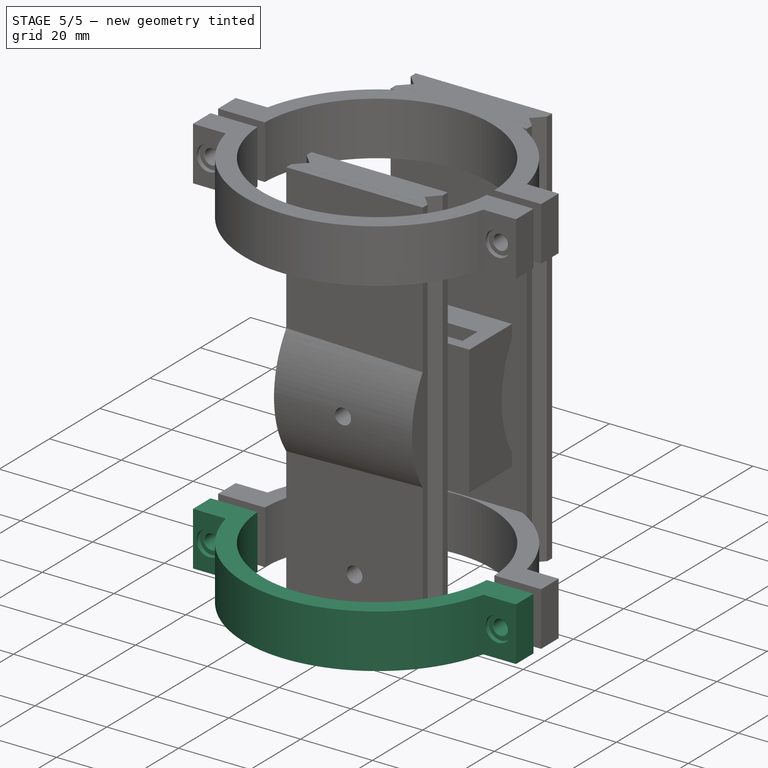
[diagram: stage 5 of 5 — iso view after this stage's code; geometry added in this stage tinted green]
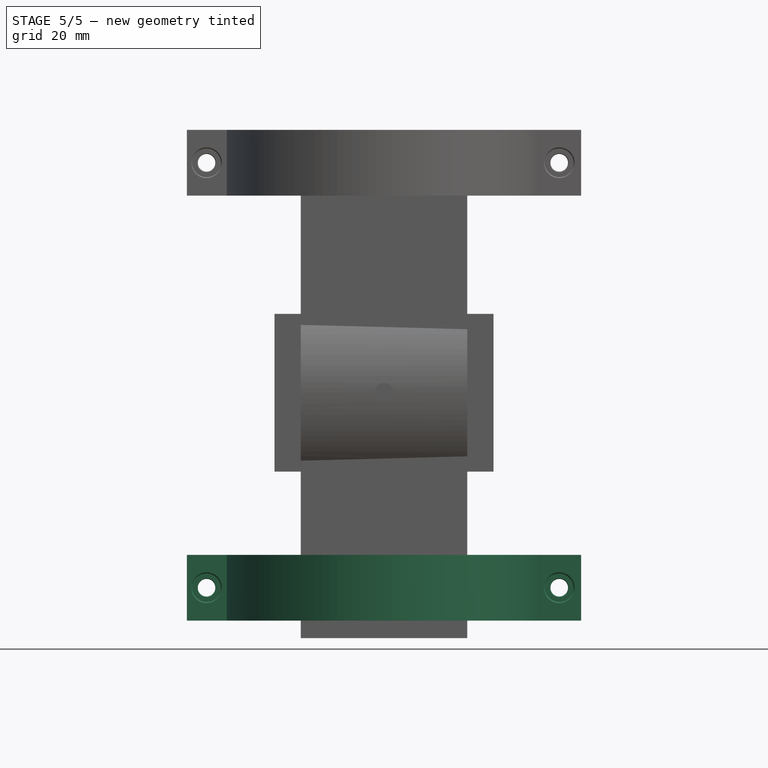
[diagram: stage 5 of 5 — front view after this stage's code; geometry added in this stage tinted green]
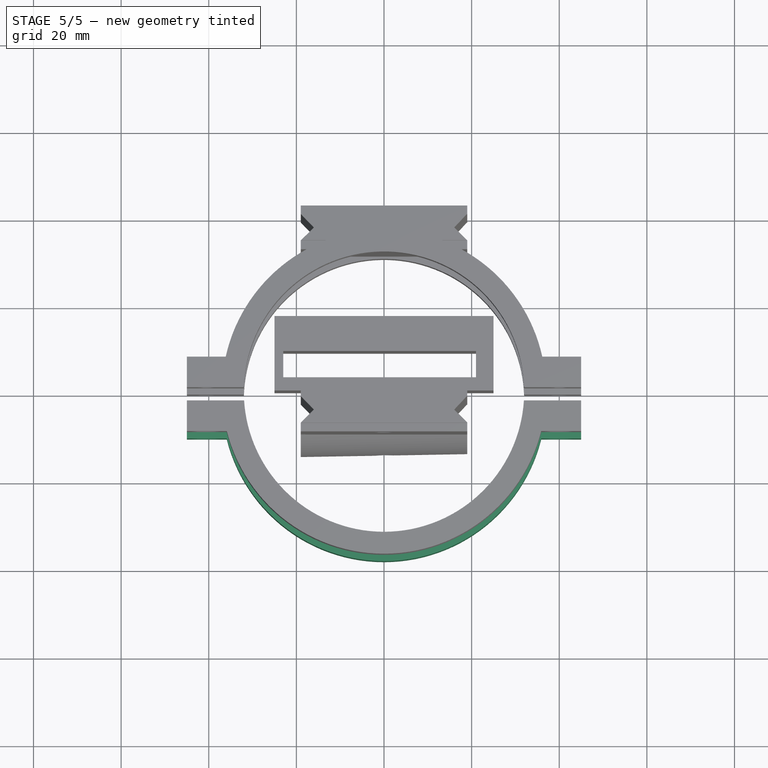
[diagram: stage 5 of 5 — top view after this stage's code; geometry added in this stage tinted green]
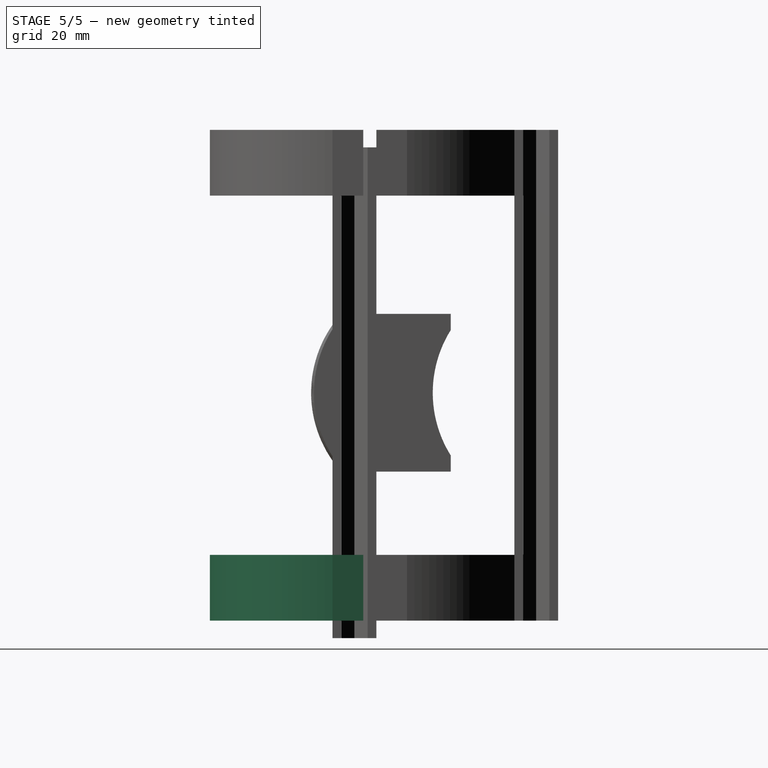
[diagram: stage 5 of 5 — right view after this stage's code; geometry added in this stage tinted green]
FEATURE [Sketcher::SketchObject] Sketch
  MapMode = 5
  Placement = pos=(0,0,60) rot=(0,0,1;0rad)
  sketch-geometry (6):
    g0: LineSegment StartX=-18.9734 StartY=34.0308 StartZ=0 EndX=-16.0253 EndY=36.9748 EndZ=0
    g1: LineSegment StartX=18.996 StartY=34.0308 StartZ=0 EndX=16.044 EndY=36.9748 EndZ=0
    g2: LineSegment StartX=18.996 StartY=34.0308 StartZ=0 EndX=-18.9734 EndY=34.0308 EndZ=0
    g3: LineSegment StartX=-18.9734 StartY=40.0311 StartZ=0 EndX=-16.0253 EndY=36.9748 EndZ=0
    g4: LineSegment StartX=16.044 StartY=36.9748 StartZ=0 EndX=18.9109 EndY=40.0311 EndZ=0
    g5: LineSegment StartX=-18.9734 StartY=40.0311 StartZ=0 EndX=18.9109 EndY=40.0311 EndZ=0
  constraints (7):
    c: Coincident(g2,g1)
    c: Coincident(g2,g0)
    c: Horizontal(g2)
    c: Coincident(g3,g0)
    c: Coincident(g5,g3)
    c: Coincident(g5,g4)
    c: Horizontal(g5)
FEATURE [Part::Extrusion] Extrude009
  Base = -> Sketch
  Dir = (0,0,1)
  DirMode = 2
  FaceMakerClass = Part::FaceMakerBullseye
  LengthFwd = -112
  LengthRev = 0
  Solid = true
  Symmetric = false
FEATURE [Part::Box] Box014  label="Krychle"
  AttacherType = Attacher::AttachEngine3D
  Height = 112
  Length = 38
  Placement = pos=(-19,32,-52) rot=(0,0,1;0rad)
  Width = 10
FEATURE [Part::Box] Box015  label="Krychle011"
  AttacherType = Attacher::AttachEngine3D
  Height = 112
  Length = 38
  Placement = pos=(-19,34,-52) rot=(0,0,1;0rad)
  Width = 6
FEATURE [Part::Cut] Cut061009
  Base = -> Box014
  Tool = -> Box015
FEATURE [Part::MultiFuse] Fusion095  label="Arca plate base"
  Placement = pos=(0,-0.5,0) rot=(0,0,1;0rad)
  Shapes = -> [Extrude009,Cut061009]
FEATURE [Part::Cylinder] Cylinder  label="tubus"
  Angle = 360
  AttacherType = Attacher::AttachEngine3D
  Height = 112
  Placement = pos=(0,-1,-52) rot=(0,0,1;0rad)
  Radius = 32
FEATURE [Part::Cylinder] Cylinder014005167  label="tubus001"
  Angle = 360
  AttacherType = Attacher::AttachEngine3D
  Height = 15
  Placement = pos=(0,-1,-52) rot=(0,0,1;0rad)
  Radius = 37
FEATURE [Part::Cylinder] Cylinder014005168  label="tubus002"
  Angle = 360
  AttacherType = Attacher::AttachEngine3D
  Height = 15
  Placement = pos=(0,-1,45) rot=(0,0,1;0rad)
  Radius = 37
FEATURE [Part::Box] Box  label="Krychle012"
  AttacherType = Attacher::AttachEngine3D
  Height = 15
  Length = 90
  Placement = pos=(-45,-10,45) rot=(0,0,1;0rad)
  Width = 17
FEATURE [Part::Box] Box016  label="mezara"
  AttacherType = Attacher::AttachEngine3D
  Height = 15
  Length = 90
  Placement = pos=(-45,-3,45) rot=(0,0,1;0rad)
  Width = 3
FEATURE [Part::Box] Box017  label="Krychle013"
  AttacherType = Attacher::AttachEngine3D
  Height = 15
  Length = 90
  Placement = pos=(-45,-10,-52) rot=(0,0,1;0rad)
  Width = 17
FEATURE [Part::Box] Box018  label="mezara001"
  AttacherType = Attacher::AttachEngine3D
  Height = 15
  Length = 90
  Placement = pos=(-45,-3,-52) rot=(0,0,1;0rad)
  Width = 3
FEATURE [Part::MultiFuse] Fusion096
  Shapes = -> [Fusion095,Cylinder014005167,Cylinder014005168,Box,Box017]
FEATURE [Part::MultiFuse] Fusion097
  Shapes = -> [Box016,Box018,Cylinder]
FEATURE [Part::Cut] Cut
  Base = -> Fusion096
  Tool = -> Fusion097
FEATURE [Part::FeaturePython] Screw  label="M4x20-Screw"  # Fasteners workbench fastener (typed FeaturePython)
  Placement = pos=(-40.5,-9,53) rot=(1,0,0;1.5708rad)
  diameter = 4
  invert = false
  length = 5
  matchOuter = false
  offset = 0
  thread = false
  type = 5
FEATURE [Part::FeaturePython] Nut  label="M4-Nut"  # Fasteners workbench fastener (typed FeaturePython)
  Placement = pos=(-40.2,7,53) rot=(1,0,0;1.5708rad)
  diameter = 6
  invert = false
  matchOuter = false
  offset = 0
  thread = false
  type = 1
FEATURE [Part::MultiFuse] Fusion098  label="Srouby"
  Placement = pos=(0,0,-0.5) rot=(0,0,1;0rad)
  Shapes = -> [Screw,Nut]
FEATURE [Part::FeaturePython] Nut001  label="M4-Nut001"  # Fasteners workbench fastener (typed FeaturePython)
  Placement = pos=(-40.2,7,53) rot=(1,0,0;1.5708rad)
  diameter = 6
  invert = false
  matchOuter = false
  offset = 0
  thread = false
  type = 1
FEATURE [Part::FeaturePython] Screw001  label="M4x20-Screw001"  # Fasteners workbench fastener (typed FeaturePython)
  Placement = pos=(-40.5,-9,53) rot=(1,0,0;1.5708rad)
  diameter = 4
  invert = false
  length = 5
  matchOuter = false
  offset = 0
  thread = false
  type = 5
FEATURE [Part::MultiFuse] Fusion099  label="Srouby001"
  Placement = pos=(80.5,0,-0.5) rot=(0,0,1;0rad)
  Shapes = -> [Screw001,Nut001]
FEATURE [Part::FeaturePython] Nut002  label="M4-Nut002"  # Fasteners workbench fastener (typed FeaturePython)
  Placement = pos=(-40.2,7,53) rot=(1,0,0;1.5708rad)
  diameter = 6
  invert = false
  matchOuter = false
  offset = 0
  thread = false
  type = 1
FEATURE [Part::FeaturePython] Screw002  label="M4x20-Screw002"  # Fasteners workbench fastener (typed FeaturePython)
  Placement = pos=(-40.5,-9,53) rot=(1,0,0;1.5708rad)
  diameter = 4
  invert = false
  length = 5
  matchOuter = false
  offset = 0
  thread = false
  type = 5
FEATURE [Part::MultiFuse] Fusion100  label="Srouby002"
  Placement = pos=(0,0,-97.5) rot=(0,0,1;0rad)
  Shapes = -> [Screw002,Nut002]
FEATURE [Part::MultiFuse] Fusion101  label="Srouby003"
  Placement = pos=(80.5,0,-97.5) rot=(0,0,1;0rad)
  Shapes = -> [Screw003,Nut003]
FEATURE [Part::MultiFuse] Fusion102
  Shapes = -> [Fusion098,Fusion099,Fusion100,Fusion101]
FEATURE [Part::Cut] Cut061010  label="Drzak 01"
  Base = -> Cut
  Tool = -> Fusion102
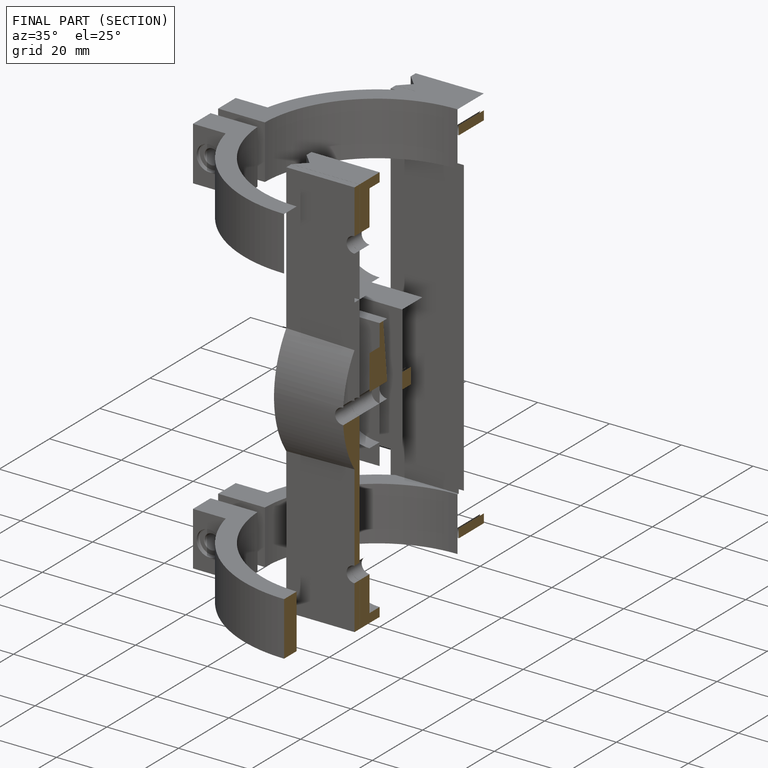
[diagram: finished part — half-section view (interior)]
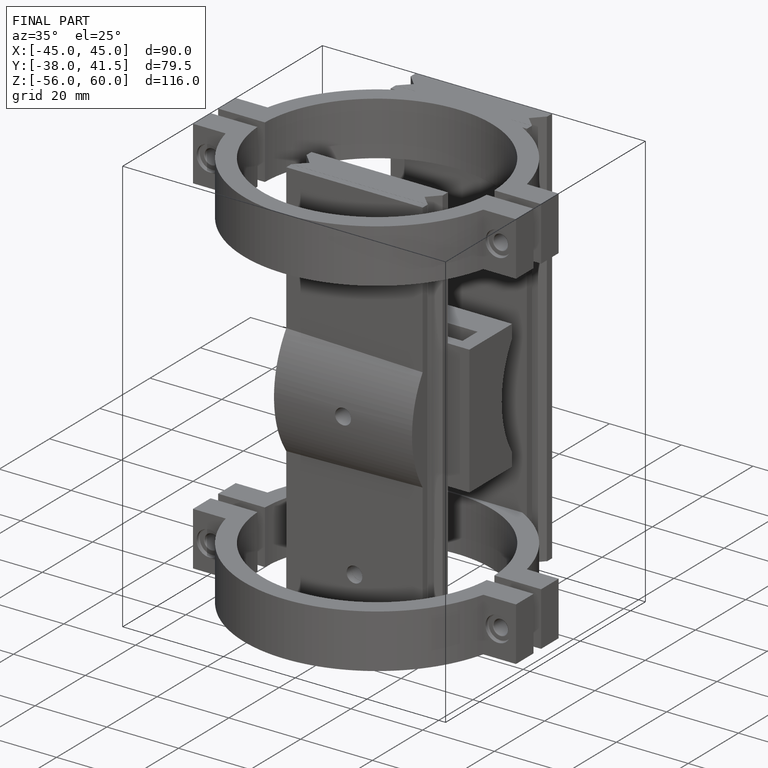
[diagram: finished part — iso view with bounding-box wireframe]
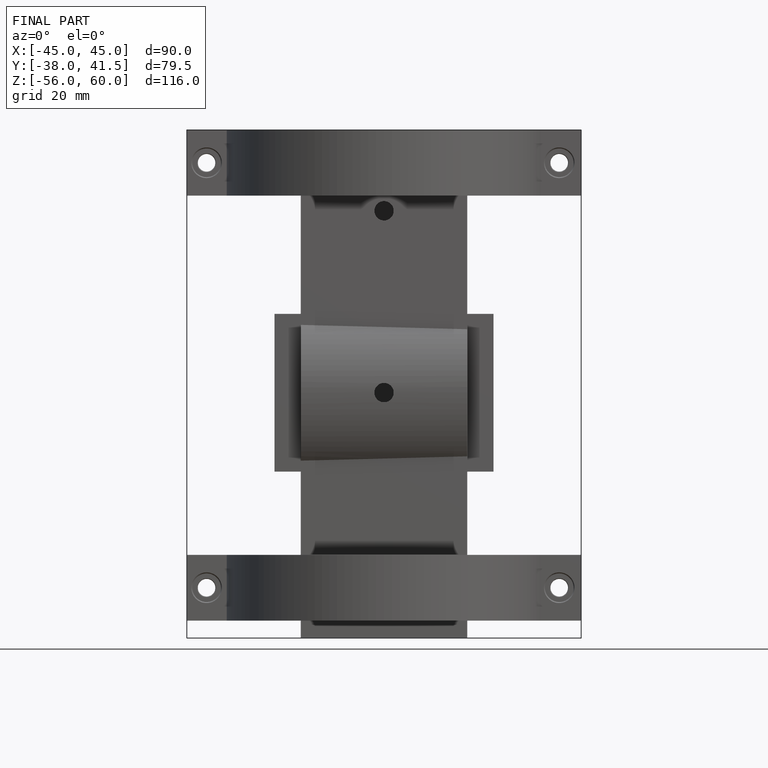
[diagram: finished part — front view with bounding-box wireframe]
